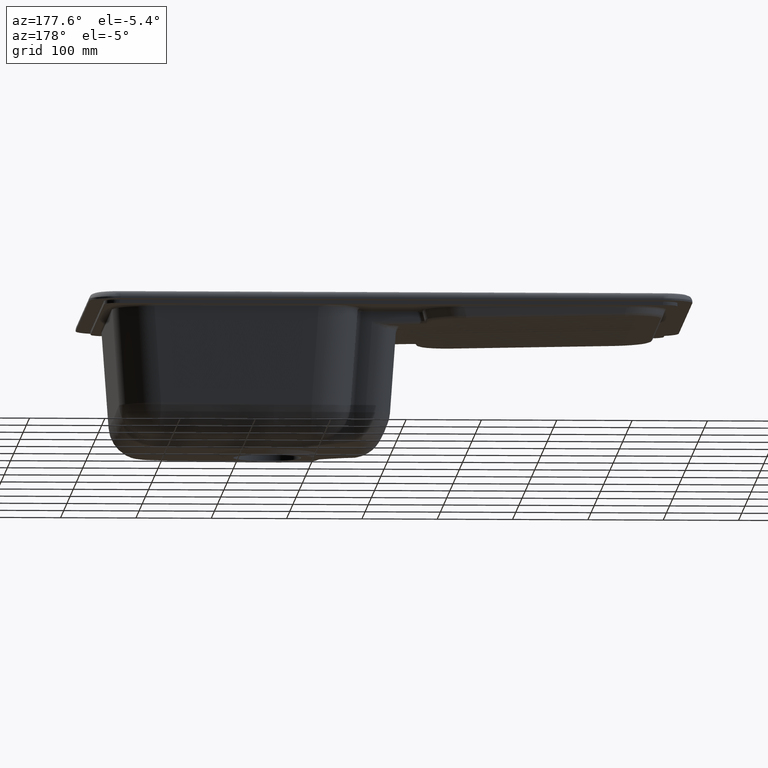
[diagram: clean part render]
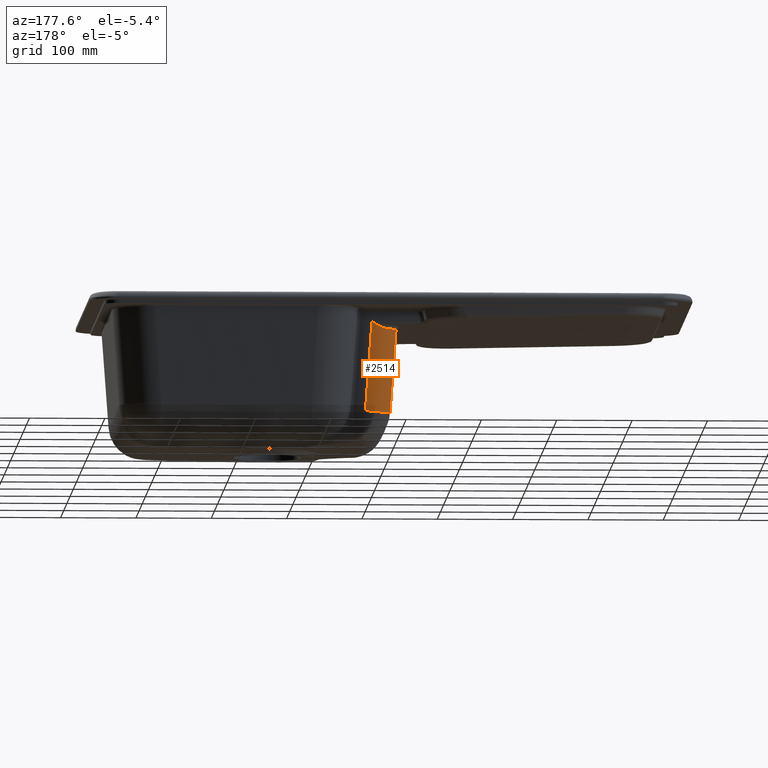
[diagram: same view with one face highlighted and labeled with its STEP entity id]
A machine part, auxiliary view. The second image highlights one B-rep face of the part: STEP entity #2514.
In plain terms, the highlighted cylindrical surface (edge-blend (fillet) strip) has radius 34 mm, axis along (-0.0696, 0.0696, 0.9951).
Its self-contained STEP definition (entity closure, byte-faithful):
#119=(
BOUNDED_CURVE()
B_SPLINE_CURVE(3,(#22474,#22475,#22476,#22477,#22478,#22479,#22480,#22481),
 .UNSPECIFIED.,.F.,.F.)
B_SPLINE_CURVE_WITH_KNOTS((4,2,2,4),(0.,0.25,0.5,1.),.UNSPECIFIED.)
CURVE()
GEOMETRIC_REPRESENTATION_ITEM()
RATIONAL_B_SPLINE_CURVE((1.,1.,1.,1.,1.,1.,1.,1.))
REPRESENTATION_ITEM('')
);
#120=(
BOUNDED_CURVE()
B_SPLINE_CURVE(3,(#22483,#22484,#22485,#22486,#22487,#22488,#22489,#22490),
 .UNSPECIFIED.,.F.,.F.)
B_SPLINE_CURVE_WITH_KNOTS((4,2,2,4),(0.,0.5,0.75,1.),.UNSPECIFIED.)
CURVE()
GEOMETRIC_REPRESENTATION_ITEM()
RATIONAL_B_SPLINE_CURVE((1.,1.,1.,1.,1.,1.,1.,1.))
REPRESENTATION_ITEM('')
);
#305=CYLINDRICAL_SURFACE('',#11806,34.);
#1087=CIRCLE('',#11805,34.);
#1831=B_SPLINE_CURVE_WITH_KNOTS('',2,(#22463,#22464,#22465),
 .UNSPECIFIED.,.F.,.F.,(3,3),(0.,1.),.UNSPECIFIED.);
#1832=B_SPLINE_CURVE_WITH_KNOTS('',3,(#22467,#22468,#22469,#22470),
 .UNSPECIFIED.,.F.,.F.,(4,4),(0.,1.),.UNSPECIFIED.);
#2514=ADVANCED_FACE('',(#3347),#305,.T.);
#3347=FACE_OUTER_BOUND('',#4112,.T.);
#4112=EDGE_LOOP('',(#5881,#5882,#5883,#5884,#5885,#5886,#5887,#5888));
#5881=ORIENTED_EDGE('',*,*,#9831,.T.);
#5882=ORIENTED_EDGE('',*,*,#9851,.T.);
#5883=ORIENTED_EDGE('',*,*,#9865,.F.);
#5884=ORIENTED_EDGE('',*,*,#9866,.F.);
#5885=ORIENTED_EDGE('',*,*,#9867,.F.);
#5886=ORIENTED_EDGE('',*,*,#9868,.F.);
#5887=ORIENTED_EDGE('',*,*,#9869,.F.);
#5888=ORIENTED_EDGE('',*,*,#9870,.F.);
#8556=VERTEX_POINT('',#22197);
#8557=VERTEX_POINT('',#22199);
#8569=VERTEX_POINT('',#22364);
#8580=VERTEX_POINT('',#22462);
#8581=VERTEX_POINT('',#22466);
#8582=VERTEX_POINT('',#22471);
#8583=VERTEX_POINT('',#22473);
#8584=VERTEX_POINT('',#22482);
#9831=EDGE_CURVE('',#8557,#8556,#11006,.T.);
#9851=EDGE_CURVE('',#8556,#8569,#11013,.T.);
#9865=EDGE_CURVE('',#8580,#8569,#1087,.T.);
#9866=EDGE_CURVE('',#8581,#8580,#1831,.T.);
#9867=EDGE_CURVE('',#8582,#8581,#1832,.T.);
#9868=EDGE_CURVE('',#8583,#8582,#11017,.T.);
#9869=EDGE_CURVE('',#8584,#8583,#119,.T.);
#9870=EDGE_CURVE('',#8557,#8584,#120,.T.);
#11006=LINE('',#22198,#11261);
#11013=LINE('',#22365,#11268);
#11017=LINE('',#22472,#11272);
#11261=VECTOR('',#13188,1.);
#11268=VECTOR('',#13209,1.);
#11272=VECTOR('',#13223,1.);
#11805=AXIS2_PLACEMENT_3D('',#22461,#13221,#13222);
#11806=AXIS2_PLACEMENT_3D('',#22491,#13224,#13225);
#13188=DIRECTION('',(0.0695873743166645,-0.0695873743166646,-0.995145815783509));
#13209=DIRECTION('',(0.0695873743166645,-0.0695873743166646,-0.995145815783509));
#13221=DIRECTION('',(0.0695873743166645,-0.0695873743166646,-0.995145815783509));
#13222=DIRECTION('',(0.,-0.997564050259825,0.0697564737441257));
#13223=DIRECTION('',(0.0695873743166645,-0.0695873743166646,-0.995145815783509));
#13224=DIRECTION('',(-0.0695873743166645,0.0695873743166646,0.995145815783509));
#13225=DIRECTION('',(0.,0.997564050259825,-0.0697564737441253));
#22197=CARTESIAN_POINT('',(22.2508608547858,-858.335898348968,-33.8937934710782));
#22198=CARTESIAN_POINT('',(22.0901770651519,-858.172999356318,-31.5642293436372));
#22199=CARTESIAN_POINT('',(21.9272851473794,-858.010111108344,-29.2348188722184));
#22364=CARTESIAN_POINT('',(30.1792134340612,-866.262035724864,-147.242838788615));
#22365=CARTESIAN_POINT('',(20.1210010154367,-856.203823306603,-3.40369985595007));
#22461=CARTESIAN_POINT('',(30.1792134336995,-900.1792134337,-144.87111868134));
#22462=CARTESIAN_POINT('',(-3.73796487047334,-900.179335787694,-147.2428302749));
#22463=CARTESIAN_POINT('',(-3.73919795799194,-900.178102743825,-147.225196301831));
#22464=CARTESIAN_POINT('',(-3.73858141422739,-900.178719265765,-147.23401328844));
#22465=CARTESIAN_POINT('',(-3.73796487046284,-900.179335787704,-147.24283027505));
#22466=CARTESIAN_POINT('',(-3.73919795799194,-900.178102743825,-147.225196301831));
#22467=CARTESIAN_POINT('',(-3.74409903048968,-900.173078678345,-147.155107699741));
#22468=CARTESIAN_POINT('',(-3.74246553818428,-900.174794165972,-147.178467728033));
#22469=CARTESIAN_POINT('',(-3.74083204587889,-900.176509653599,-147.201827756326));
#22470=CARTESIAN_POINT('',(-3.73919855357349,-900.178225141226,-147.225187784618));
#22471=CARTESIAN_POINT('',(-3.74409903048968,-900.173078678344,-147.155107699741));
#22472=CARTESIAN_POINT('',(-13.7961766933973,-890.121001015437,-3.40369985595007));
#22473=CARTESIAN_POINT('',(-11.3946263354297,-892.522551373404,-37.7474700239319));
#22474=CARTESIAN_POINT('',(0.479624046541875,-866.744908321695,-37.8874127777781));
#22475=CARTESIAN_POINT('',(-1.39317336858791,-868.339646849946,-37.8402555313559));
#22476=CARTESIAN_POINT('',(-3.05946420030812,-870.107674819291,-37.8018427223423));
#22477=CARTESIAN_POINT('',(-5.99383344360845,-873.97640365542,-37.7418641612672));
#22478=CARTESIAN_POINT('',(-7.27055983476421,-876.104185818616,-37.7202808309919));
#22479=CARTESIAN_POINT('',(-10.3237847522419,-882.730834028726,-37.6842815785677));
#22480=CARTESIAN_POINT('',(-11.3981387093071,-887.586747310907,-37.6972407373416));
#22481=CARTESIAN_POINT('',(-11.3946263354296,-892.522551373405,-37.747470023932));
#22482=CARTESIAN_POINT('',(0.479624046541857,-866.744908321695,-37.8874127777781));
#22483=CARTESIAN_POINT('',(21.9272888224928,-858.010111113656,-29.2348189481886));
#22484=CARTESIAN_POINT('',(18.2074756554131,-858.157503630762,-31.3426301440522));
#22485=CARTESIAN_POINT('',(14.4580280075995,-858.964710508843,-33.4303170654523));
#22486=CARTESIAN_POINT('',(9.04823870257269,-861.1384613564,-35.8784343890492));
#22487=CARTESIAN_POINT('',(7.25823643175783,-862.032135891239,-36.5907180129583));
#22488=CARTESIAN_POINT('',(3.76092624186431,-864.1620013809,-37.6166977780166));
#22489=CARTESIAN_POINT('',(2.0882505289766,-865.375118610756,-37.9279181674968));
#22490=CARTESIAN_POINT('',(0.479624046541792,-866.744908321695,-37.8874127777781));
#22491=CARTESIAN_POINT('',(20.1210010154368,-890.121001015437,-1.03197974864981));